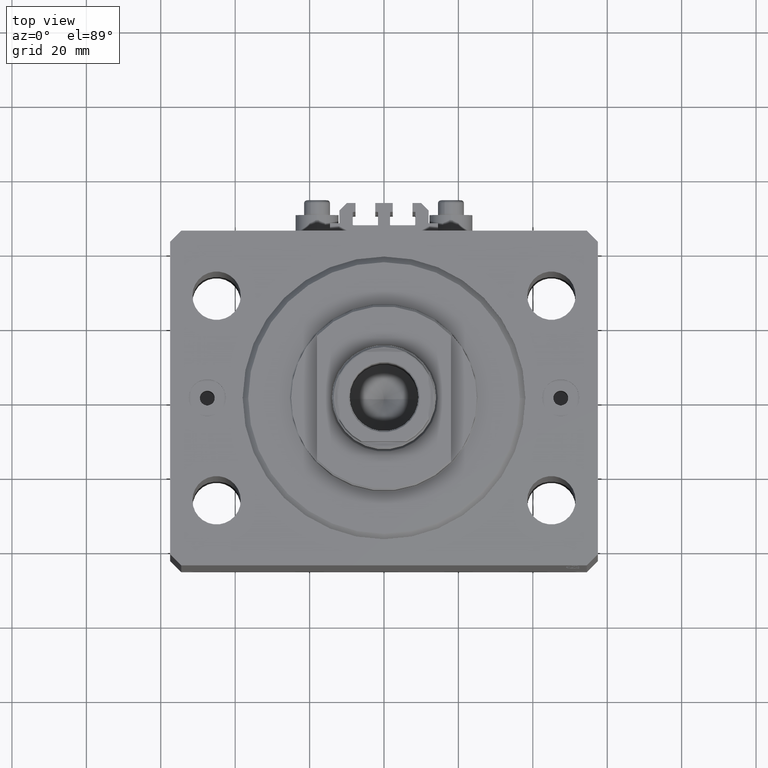
[diagram: clean part render]
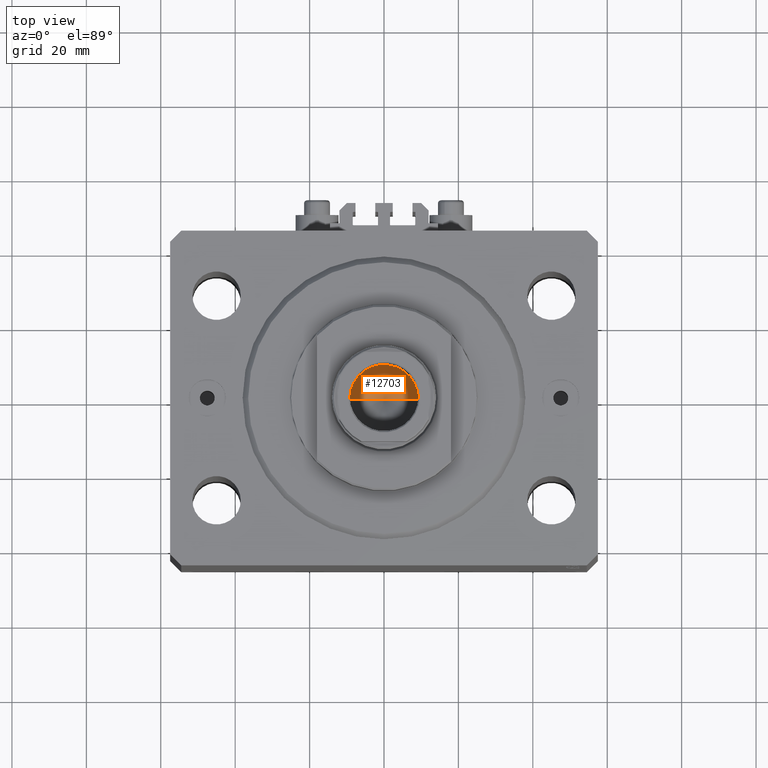
[diagram: same view with one face highlighted and labeled with its STEP entity id]
A machine part, top view. The second image highlights one B-rep face of the part: STEP entity #12703.
In plain terms, the highlighted conical surface has half-angle 59 deg.
Its self-contained STEP definition (entity closure, byte-faithful):
#159 = CONICAL_SURFACE ( 'NONE', #19982, 9.249999999999994671, 1.029744258676653423 ) ;
#390 = EDGE_CURVE ( 'NONE', #34686, #16434, #3309, .T. ) ;
#2301 = EDGE_LOOP ( 'NONE', ( #26692, #20383, #37358 ) ) ;
#3309 = LINE ( 'NONE', #29310, #13620 ) ;
#3542 = DIRECTION ( 'NONE',  ( 0.8571673007021117785, 0.000000000000000000, 0.5150380749100550437 ) ) ;
#5106 = EDGE_CURVE ( 'NONE', #16434, #26000, #31157, .T. ) ;
#5224 = DIRECTION ( 'NONE',  ( 1.000000000000000000, 0.000000000000000000, 0.000000000000000000 ) ) ;
#10603 = AXIS2_PLACEMENT_3D ( 'NONE', #12422, #27214, #34384 ) ;
#12152 = DIRECTION ( 'NONE',  ( -0.000000000000000000, -0.000000000000000000, 1.000000000000000000 ) ) ;
#12422 = CARTESIAN_POINT ( 'NONE',  ( 0.000000000000000000, 0.000000000000000000, 72.09999999999999432 ) ) ;
#12620 = FACE_OUTER_BOUND ( 'NONE', #2301, .T. ) ;
#12703 = ADVANCED_FACE ( 'NONE', ( #12620 ), #159, .F. ) ;
#13620 = VECTOR ( 'NONE', #3542, 1000.000000000000000 ) ;
#16434 = VERTEX_POINT ( 'NONE', #45738 ) ;
#19982 = AXIS2_PLACEMENT_3D ( 'NONE', #20266, #12152, #5224 ) ;
#20266 = CARTESIAN_POINT ( 'NONE',  ( 0.000000000000000000, 0.000000000000000000, 72.09999999999999432 ) ) ;
#20383 = ORIENTED_EDGE ( 'NONE', *, *, #390, .T. ) ;
#21380 = DIRECTION ( 'NONE',  ( -0.8571673007021117785, 1.049727191138617956E-16, 0.5150380749100550437 ) ) ;
#22089 = CARTESIAN_POINT ( 'NONE',  ( -9.249999999999994671, 1.132798289211300909E-15, 72.09999999999999432 ) ) ;
#24036 = CARTESIAN_POINT ( 'NONE',  ( -1.046994375366439223E-14, 0.000000000000000000, 66.54203927399505858 ) ) ;
#26000 = VERTEX_POINT ( 'NONE', #46235 ) ;
#26692 = ORIENTED_EDGE ( 'NONE', *, *, #27526, .F. ) ;
#27214 = DIRECTION ( 'NONE',  ( -0.000000000000000000, -0.000000000000000000, 1.000000000000000000 ) ) ;
#27526 = EDGE_CURVE ( 'NONE', #34686, #26000, #46438, .T. ) ;
#27583 = VECTOR ( 'NONE', #21380, 1000.000000000000000 ) ;
#29310 = CARTESIAN_POINT ( 'NONE',  ( 9.249999999999994671, 0.000000000000000000, 72.09999999999999432 ) ) ;
#31157 = CIRCLE ( 'NONE', #10603, 9.249999999999994671 ) ;
#34384 = DIRECTION ( 'NONE',  ( 1.000000000000000000, 0.000000000000000000, 0.000000000000000000 ) ) ;
#34686 = VERTEX_POINT ( 'NONE', #24036 ) ;
#37358 = ORIENTED_EDGE ( 'NONE', *, *, #5106, .T. ) ;
#45738 = CARTESIAN_POINT ( 'NONE',  ( 9.249999999999994671, 0.000000000000000000, 72.09999999999999432 ) ) ;
#46235 = CARTESIAN_POINT ( 'NONE',  ( -9.249999999999994671, 1.132798289211300909E-15, 72.09999999999999432 ) ) ;
#46438 = LINE ( 'NONE', #22089, #27583 ) ;